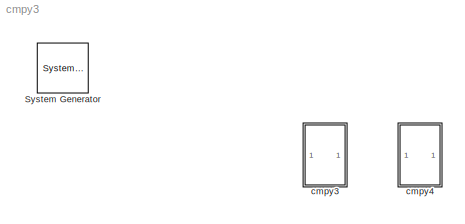
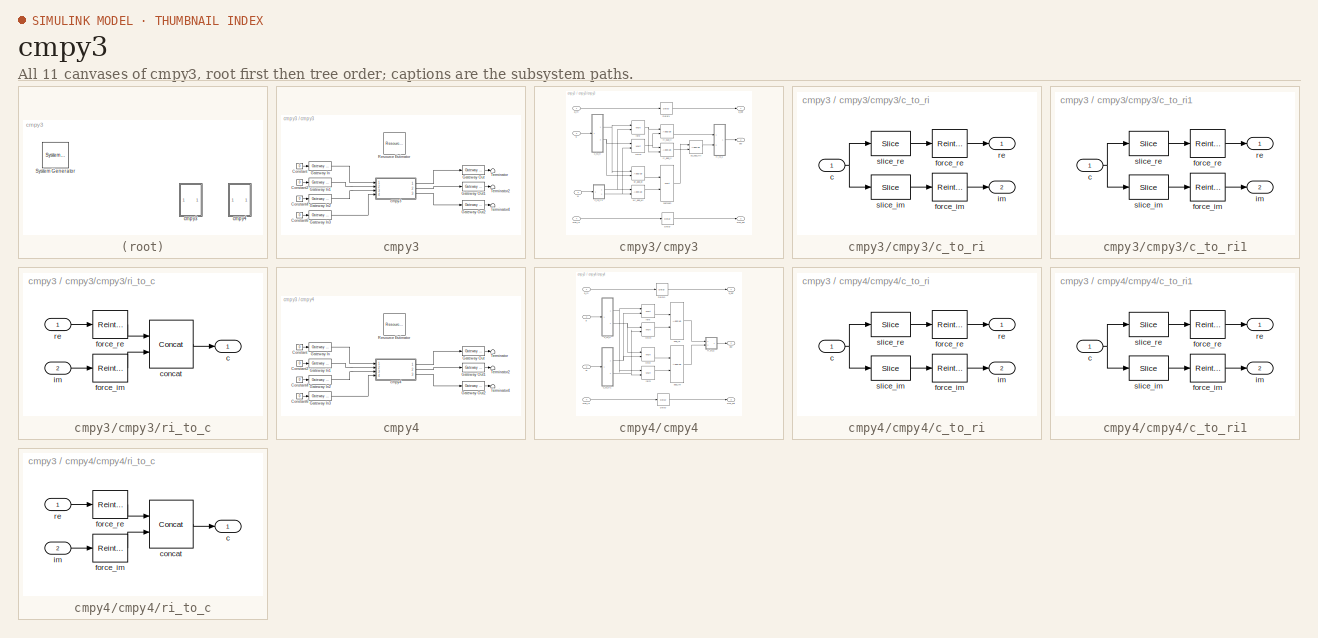
[diagram: thumbnail index - all 11 canvases of the model, root first then tree order]
MODEL cmpy3
KIND model
BLOCK [Reference]  System Generator  REF=xbsIndex_r3/ System Generator
  AttributesFormatString = System\\nGenerator
  Ports = []
  ShowPortLabels = on
  SourceBlock = xbsIndex_r3/ System Generator
  SourceType = Xilinx System Generator
  Tag = genX
  UserData = DataTag0
  UserDataPersistent = on
  core_generation = According to Block Masks
  dbl_ovrd = According to Block Masks
  deprecated_control = off
  directory = ./netlist
  eval_field = 0
  incr_netlist = off
  package = bg575
  part = xc2v1000
  run_coregen = off
  simulink_period = 1
  speed = -4
  synthesis_tool = XST
  sysclk_period = 100
  testbench = off
  trim_vbits = Everywhere in SubSystem
  xilinxfamily = Virtex2
BLOCK [SubSystem] cmpy3
  MinAlgLoopOccurrences = off
  Ports = []
  RTWSystemCode = Auto
  TreatAsAtomicUnit = off
BLOCK [Constant] cmpy3/Constant
  Value = 0
BLOCK [Constant] cmpy3/Constant2
  Value = 0
BLOCK [Constant] cmpy3/Constant4
  Value = 0
BLOCK [Constant] cmpy3/Constant6
  Value = 0
BLOCK [Reference] cmpy3/Gateway In  REF=xbsIndex_r3/Gateway In
  LOCs = {}
  Ports = [1, 1]
  SourceBlock = xbsIndex_r3/Gateway In
  SourceType = Xilinx Gateway In
  arith_type = Unsigned
  bin_pt = 0
  dbl_ovrd = off
  locs_specified = off
  n_bits = 34
  needs_fixed_name = off
  overflow = Wrap
  period = 1
  quantization = Truncate
  show_param = off
  timing_constraint = None
  xl_area = [0 0 0 0 34 0 0]
  xl_use_area = off
BLOCK [Reference] cmpy3/Gateway In1  REF=xbsIndex_r3/Gateway In
  LOCs = {}
  Ports = [1, 1]
  SourceBlock = xbsIndex_r3/Gateway In
  SourceType = Xilinx Gateway In
  arith_type = Unsigned
  bin_pt = 0
  dbl_ovrd = off
  locs_specified = off
  n_bits = 34
  needs_fixed_name = off
  overflow = Wrap
  period = 1
  quantization = Truncate
  show_param = off
  timing_constraint = None
  xl_area = [0 0 0 0 34 0 0]
  xl_use_area = off
BLOCK [Reference] cmpy3/Gateway In2  REF=xbsIndex_r3/Gateway In
  LOCs = {}
  Ports = [1, 1]
  SourceBlock = xbsIndex_r3/Gateway In
  SourceType = Xilinx Gateway In
  arith_type = Unsigned
  bin_pt = 0
  dbl_ovrd = off
  locs_specified = off
  n_bits = 18
  needs_fixed_name = off
  overflow = Wrap
  period = 1
  quantization = Truncate
  show_param = off
  timing_constraint = None
  xl_area = [0 0 0 0 18 0 0]
  xl_use_area = off
BLOCK [Reference] cmpy3/Gateway In3  REF=xbsIndex_r3/Gateway In
  LOCs = {}
  Ports = [1, 1]
  SourceBlock = xbsIndex_r3/Gateway In
  SourceType = Xilinx Gateway In
  arith_type = Boolean
  bin_pt = 6
  dbl_ovrd = off
  locs_specified = off
  n_bits = 8
  needs_fixed_name = off
  overflow = Wrap
  period = 1
  quantization = Truncate
  show_param = off
  timing_constraint = None
  xl_area = [0 0 0 0 1 0 0]
  xl_use_area = off
BLOCK [Reference] cmpy3/Gateway Out  REF=xbsIndex_r3/Gateway Out
  LOCs = {}
  Ports = [1, 1]
  SourceBlock = xbsIndex_r3/Gateway Out
  SourceType = Xilinx Gateway Out
  arith_type = Boolean
  bin_pt = 6
  hdl_port = on
  locs_specified = off
  nbits = 8
  needs_fixed_name = off
  output_type = Double
  overflow = Wrap
  quantization = Truncate
  show_param = off
  timing_constraint = None
  xl_area = [0 0 0 0 34 0 0]
  xl_use_area = off
BLOCK [Reference] cmpy3/Gateway Out1  REF=xbsIndex_r3/Gateway Out
  LOCs = {}
  Ports = [1, 1]
  SourceBlock = xbsIndex_r3/Gateway Out
  SourceType = Xilinx Gateway Out
  arith_type = Boolean
  bin_pt = 6
  hdl_port = on
  locs_specified = off
  nbits = 8
  needs_fixed_name = off
  output_type = Double
  overflow = Wrap
  quantization = Truncate
  show_param = off
  timing_constraint = None
  xl_area = [0 0 0 0 34 0 0]
  xl_use_area = off
BLOCK [Reference] cmpy3/Gateway Out2  REF=xbsIndex_r3/Gateway Out
  LOCs = {}
  Ports = [1, 1]
  SourceBlock = xbsIndex_r3/Gateway Out
  SourceType = Xilinx Gateway Out
  arith_type = Boolean
  bin_pt = 6
  hdl_port = on
  locs_specified = off
  nbits = 8
  needs_fixed_name = off
  output_type = Double
  overflow = Wrap
  quantization = Truncate
  show_param = off
  timing_constraint = None
  xl_area = [0 0 0 0 1 0 0]
  xl_use_area = off
BLOCK [Reference] cmpy3/Resource Estimator  REF=xbsIndex_r3/Resource Estimator
  AttributesFormatString = Resource Estimator\\n%<xl_estimator_area>\\n[SL FF BR LUT IO MUL TBUF]
  Ports = []
  ShowPortLabels = on
  SourceBlock = xbsIndex_r3/Resource Estimator
  SourceType = Xilinx Resource Estimator Block
  Tag = resEstTag
  mrp_directory = <path>
  simulink_period = 1
  xl_estimator_area = [216 323 0 329 156 3 0]
  xl_use_estimator_area = off
BLOCK [Terminator] cmpy3/Terminator
BLOCK [Terminator] cmpy3/Terminator2
BLOCK [Terminator] cmpy3/Terminator4
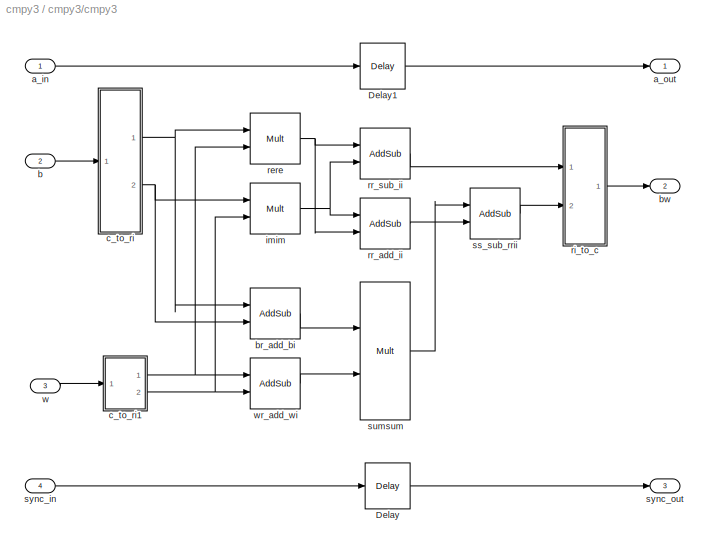
BLOCK [SubSystem] cmpy3/cmpy3
  AttributesFormatString = 8_7 * 9_7 ==> 8_7
  MaskCallbackString = |||||||||
  MaskDescription = This block multiplies two complex numbers using 4 real multipliers and 2 real adders.  Pass-through paths are provided for another complex number and a sync signal.  These pass through paths provide delay that matches the latency of the complex multiply operation.
  MaskEnableString = on,on,on,on,on,on,on,on,on,on
  MaskHelp = <pre>\nDescription::\n\nThis block multiplies two complex numbers using 4 real multipliers and 2 real adders.\nPass-through paths are provided for another complex number and a sync signal.\nThese paths provide delay that matches the latency of the complex multiply operation.\n\na_in is passed through to a_out.\nb and w complex inputs are multiplied and their product appears on the bw output.\nsync...<+1222ch>
  MaskIconFrame = on
  MaskIconOpaque = on
  MaskIconRotate = none
  MaskIconUnits = autoscale
  MaskInitialization = cmpy3_init(gcb, ...\n    n_bits_b,bin_pt_b, ...\n    n_bits_w,bin_pt_w, ...\n    n_bits_bw,bin_pt_bw, ...\n    quantization,overflow, ...\n    mult_latency,add_latency);
  MaskPromptString = Number of Bits B|Binary Point B|Number of Bits W|Binary Point W|Number of Bits BW|Binary Point BW|Quantization|Overflow|Multiplier Latency|Adder Latency
  MaskSelfModifiable = on
  MaskStyleString = edit,edit,edit,edit,edit,edit,popup(Truncate|Round  (unbiased: +/- Inf)),popup(Wrap|Saturate|Error),edit,edit
  MaskTabNameString = ,,,,,,,,,
  MaskToolTipString = on,on,on,on,on,on,on,on,on,on
  MaskTunableValueString = on,on,on,on,on,on,on,on,on,on
  MaskType = Complex Multiplier (4 real multipliers)
  MaskValueString = 8|7|9|7|8|7|Round  (unbiased: +/- Inf)|Saturate|3|1
  MaskVarAliasString = ,,,,,,,,,
  MaskVariables = n_bits_b=@1;bin_pt_b=@2;n_bits_w=@3;bin_pt_w=@4;n_bits_bw=@5;bin_pt_bw=@6;quantization=@7;overflow=@8;mult_latency=@9;add_latency=@10;
  MaskVisibilityString = on,on,on,on,on,on,on,on,on,on
  MinAlgLoopOccurrences = off
  Ports = [4, 3]
  RTWSystemCode = Auto
  TreatAsAtomicUnit = off
  UserData = DataTag1
  UserDataPersistent = on
BLOCK [Reference] cmpy3/cmpy3/Delay  REF=xbsIndex_r3/Delay
  Ports = [1, 1]
  SourceBlock = xbsIndex_r3/Delay
  SourceType = Xilinx Delay Block
  accept_only_valid = off
  dbl_ovrd = off
  en = off
  explicit_period = off
  init_zero = on
  latency = 5
  period = 1
  reg_retiming = off
  show_param = off
  xl_area = [1 1 0 1 0 0 0]
  xl_use_area = off
BLOCK [Reference] cmpy3/cmpy3/Delay1  REF=xbsIndex_r3/Delay
  Ports = [1, 1]
  SourceBlock = xbsIndex_r3/Delay
  SourceType = Xilinx Delay Block
  accept_only_valid = off
  dbl_ovrd = off
  en = off
  explicit_period = off
  init_zero = on
  latency = 5
  period = 1
  reg_retiming = off
  show_param = off
  xl_area = [17 34 0 34 0 0 0]
  xl_use_area = off
BLOCK [Inport] cmpy3/cmpy3/a_in
  IconDisplay = Port number
  LatchInput = off
  Port = 1
BLOCK [Outport] cmpy3/cmpy3/a_out
  BusOutputAsStruct = off
  IconDisplay = Port number
BLOCK [Inport] cmpy3/cmpy3/b
  IconDisplay = Port number
  LatchInput = off
  Port = 2
BLOCK [Reference] cmpy3/cmpy3/br_add_bi  REF=xbsIndex_r3/AddSub
  Ports = [2, 1]
  SourceBlock = xbsIndex_r3/AddSub
  SourceType = Xilinx Adder/Subtractor
  arith_type = Unsigned
  bin_pt = 2
  dbl_ovrd = off
  en = off
  explicit_period = off
  gen_core = off
  latency = 1
  mode = Addition
  n_bits = 8
  overflow = Wrap
  period = 1
  pipeline = on
  precision = Full
  quantization = Truncate
  show_param = on
  use_carryin = off
  use_carryout = off
  use_core = on
  use_rpm = on
  xl_area = [9 18 0 18 0 0 0]
  xl_use_area = off
BLOCK [Outport] cmpy3/cmpy3/bw
  BusOutputAsStruct = off
  IconDisplay = Port number
  Port = 2
BLOCK [SubSystem] cmpy3/cmpy3/c_to_ri
  AttributesFormatString = 8_7 r/i
  MaskCallbackString = |
  MaskDescription = Outputs real and imaginary components of a complex input.
  MaskEnableString = on,on
  MaskHelp = <pre>\nDescription::\n\nOutputs real and imaginary components of a complex input.\nUseful for simplifying interconnects.\nSee also: Real-Imag to Complex (ri_to_c)\n\nMask Parameters::\n\nBit Width (n_bits): Specifies the width of the real/imaginary components.\nAssumed equal for both components.\n\nBinary Point (bin_pt): Specifies the binary point location in the real/imaginary components.\nAssume...<+36ch>  <repeated x4 — deduplicated; at blocks: c_to_ri, c_to_ri1>
  MaskIconFrame = on
  MaskIconOpaque = on
  MaskIconRotate = none
  MaskIconUnits = autoscale
  MaskPromptString = Bit Width|Binary Point
  MaskSelfModifiable = on
  MaskStyleString = edit,edit
  MaskTabNameString = ,
  MaskToolTipString = on,on
  MaskTunableValueString = on,on
  MaskType = Complex to Real-Imag
  MaskValueString = 8|7
  MaskVarAliasString = ,
  MaskVariables = n_bits=@1;bin_pt=@2;
  MaskVisibilityString = on,on
  MinAlgLoopOccurrences = off
  Ports = [1, 2]
  RTWSystemCode = Auto
  TreatAsAtomicUnit = off
  UserData = DataTag2
  UserDataPersistent = on
BLOCK [Inport] cmpy3/cmpy3/c_to_ri/c
  IconDisplay = Port number
  LatchInput = off
  Port = 1
BLOCK [Reference] cmpy3/cmpy3/c_to_ri/force_im  REF=xbsIndex_r3/Reinterpret
  Ports = [1, 1]
  SourceBlock = xbsIndex_r3/Reinterpret
  SourceType = Xilinx Type Reinterpreting Block
  arith_type = Signed  (2's comp)
  bin_pt = 7
  force_arith_type = on
  force_bin_pt = on
  force_valid = on
BLOCK [Reference] cmpy3/cmpy3/c_to_ri/force_re  REF=xbsIndex_r3/Reinterpret
  Ports = [1, 1]
  SourceBlock = xbsIndex_r3/Reinterpret
  SourceType = Xilinx Type Reinterpreting Block
  arith_type = Signed  (2's comp)
  bin_pt = 7
  force_arith_type = on
  force_bin_pt = on
  force_valid = on
BLOCK [Outport] cmpy3/cmpy3/c_to_ri/im
  BusOutputAsStruct = off
  IconDisplay = Port number
  Port = 2
BLOCK [Outport] cmpy3/cmpy3/c_to_ri/re
  BusOutputAsStruct = off
  IconDisplay = Port number
BLOCK [Reference] cmpy3/cmpy3/c_to_ri/slice_im  REF=xbsIndex_r3/Slice
  Ports = [1, 1]
  SourceBlock = xbsIndex_r3/Slice
  SourceType = Xilinx Slice Block
  base0 = LSB of Input
  base1 = MSB of Input
  bit0 = 0
  bit1 = 0
  boolean_output = off
  dbl_ovrd = off
  explicit_period = off
  mode = Lower Bit Location + Width
  nbits = 8
  period = 1
BLOCK [Reference] cmpy3/cmpy3/c_to_ri/slice_re  REF=xbsIndex_r3/Slice
  Ports = [1, 1]
  SourceBlock = xbsIndex_r3/Slice
  SourceType = Xilinx Slice Block
  base0 = LSB of Input
  base1 = MSB of Input
  bit0 = 0
  bit1 = 0
  boolean_output = off
  dbl_ovrd = off
  explicit_period = off
  mode = Upper Bit Location + Width
  nbits = 8
  period = 1
BLOCK [SubSystem] cmpy3/cmpy3/c_to_ri1
  AttributesFormatString = 9_7 r/i
  MaskCallbackString = |
  MaskDescription = Outputs real and imaginary components of a complex input.
  MaskEnableString = on,on
  MaskIconFrame = on
  MaskIconOpaque = on
  MaskIconRotate = none
  MaskIconUnits = autoscale
  MaskInitialization = c_to_ri_init(gcb,n_bits,bin_pt);
  MaskPromptString = Bit Width|Binary Point
  MaskSelfModifiable = on
  MaskStyleString = edit,edit
  MaskTabNameString = ,
  MaskToolTipString = on,on
  MaskTunableValueString = on,on
  MaskType = Complex to Real-Imag
  MaskValueString = 9|7
  MaskVarAliasString = ,
  MaskVariables = n_bits=@1;bin_pt=@2;
  MaskVisibilityString = on,on
  MinAlgLoopOccurrences = off
  Ports = [1, 2]
  RTWSystemCode = Auto
  TreatAsAtomicUnit = off
  UserData = DataTag3
  UserDataPersistent = on
BLOCK [Inport] cmpy3/cmpy3/c_to_ri1/c
  IconDisplay = Port number
  LatchInput = off
  Port = 1
BLOCK [Reference] cmpy3/cmpy3/c_to_ri1/force_im  REF=xbsIndex_r3/Reinterpret
  Ports = [1, 1]
  SourceBlock = xbsIndex_r3/Reinterpret
  SourceType = Xilinx Type Reinterpreting Block
  arith_type = Signed  (2's comp)
  bin_pt = 7
  force_arith_type = on
  force_bin_pt = on
  force_valid = on
BLOCK [Reference] cmpy3/cmpy3/c_to_ri1/force_re  REF=xbsIndex_r3/Reinterpret
  Ports = [1, 1]
  SourceBlock = xbsIndex_r3/Reinterpret
  SourceType = Xilinx Type Reinterpreting Block
  arith_type = Signed  (2's comp)
  bin_pt = 7
  force_arith_type = on
  force_bin_pt = on
  force_valid = on
BLOCK [Outport] cmpy3/cmpy3/c_to_ri1/im
  BusOutputAsStruct = off
  IconDisplay = Port number
  Port = 2
BLOCK [Outport] cmpy3/cmpy3/c_to_ri1/re
  BusOutputAsStruct = off
  IconDisplay = Port number
BLOCK [Reference] cmpy3/cmpy3/c_to_ri1/slice_im  REF=xbsIndex_r3/Slice
  Ports = [1, 1]
  SourceBlock = xbsIndex_r3/Slice
  SourceType = Xilinx Slice Block
  base0 = LSB of Input
  base1 = MSB of Input
  bit0 = 0
  bit1 = 0
  boolean_output = off
  dbl_ovrd = off
  explicit_period = off
  mode = Lower Bit Location + Width
  nbits = 9
  period = 1
BLOCK [Reference] cmpy3/cmpy3/c_to_ri1/slice_re  REF=xbsIndex_r3/Slice
  Ports = [1, 1]
  SourceBlock = xbsIndex_r3/Slice
  SourceType = Xilinx Slice Block
  base0 = LSB of Input
  base1 = MSB of Input
  bit0 = 0
  bit1 = 0
  boolean_output = off
  dbl_ovrd = off
  explicit_period = off
  mode = Upper Bit Location + Width
  nbits = 9
  period = 1
BLOCK [Reference] cmpy3/cmpy3/imim  REF=xbsIndex_r3/Mult
  Ports = [2, 1]
  SourceBlock = xbsIndex_r3/Mult
  SourceType = Xilinx Multiplier
  arith_type = Signed  (2's comp)
  bin_pt = 2
  dbl_ovrd = off
  en = off
  explicit_period = off
  gen_core = off
  latency = 3
  mult_type = Parallel
  n_bits = 8
  overflow = Wrap
  oversample = 2
  period = 1
  pipeline = on
  placement_style = Rectangular Shape
  precision = Full
  quantization = Truncate
  show_param = on
  use_embedded = on
  use_rpm = on
  xl_area = [26 52 0 26 0 1 0]
  xl_use_area = off
BLOCK [Reference] cmpy3/cmpy3/rere  REF=xbsIndex_r3/Mult
  Ports = [2, 1]
  SourceBlock = xbsIndex_r3/Mult
  SourceType = Xilinx Multiplier
  arith_type = Signed  (2's comp)
  bin_pt = 2
  dbl_ovrd = off
  en = off
  explicit_period = off
  gen_core = off
  latency = 3
  mult_type = Parallel
  n_bits = 8
  overflow = Wrap
  oversample = 2
  period = 1
  pipeline = on
  placement_style = Rectangular Shape
  precision = Full
  quantization = Truncate
  show_param = on
  use_embedded = on
  use_rpm = on
  xl_area = [26 52 0 26 0 1 0]
  xl_use_area = off
BLOCK [SubSystem] cmpy3/cmpy3/ri_to_c
  MaskDescription = Concatenates real and imaginary inputs into a complex output.
  MaskHelp = <pre>\nDescription::\n\nConcatenates a real and imaginary input into a complex output.\nUseful for simplifying interconnects.\nSee also: Complex to Real-Imag (c_to_ri)\n\nMask Parameters::\n\n(N/A)\n</pre>
  MaskIconFrame = on
  MaskIconOpaque = on
  MaskIconRotate = none
  MaskIconUnits = autoscale
  MaskInitialization = ri_to_c_init(gcb);
  MaskSelfModifiable = on
  MaskType = Real-Imag to Complex
  MinAlgLoopOccurrences = off
  Ports = [2, 1]
  RTWSystemCode = Auto
  TreatAsAtomicUnit = off
  UserData = DataTag4
  UserDataPersistent = on
BLOCK [Outport] cmpy3/cmpy3/ri_to_c/c
  BusOutputAsStruct = off
  IconDisplay = Port number
BLOCK [Reference] cmpy3/cmpy3/ri_to_c/concat  REF=xbsIndex_r3/Concat
  Ports = [2, 1]
  SourceBlock = xbsIndex_r3/Concat
  SourceType = Xilinx Bus Concatenator
  dbl_ovrd = off
  explicit_period = off
  num_inputs = 2
  period = 1
BLOCK [Reference] cmpy3/cmpy3/ri_to_c/force_im  REF=xbsIndex_r3/Reinterpret
  Ports = [1, 1]
  SourceBlock = xbsIndex_r3/Reinterpret
  SourceType = Xilinx Type Reinterpreting Block
  arith_type = Unsigned
  bin_pt = 0
  force_arith_type = on
  force_bin_pt = on
  force_valid = on
BLOCK [Reference] cmpy3/cmpy3/ri_to_c/force_re  REF=xbsIndex_r3/Reinterpret
  Ports = [1, 1]
  SourceBlock = xbsIndex_r3/Reinterpret
  SourceType = Xilinx Type Reinterpreting Block
  arith_type = Unsigned
  bin_pt = 0
  force_arith_type = on
  force_bin_pt = on
  force_valid = on
BLOCK [Inport] cmpy3/cmpy3/ri_to_c/im
  IconDisplay = Port number
  LatchInput = off
  Port = 2
BLOCK [Inport] cmpy3/cmpy3/ri_to_c/re
  IconDisplay = Port number
  LatchInput = off
  Port = 1
BLOCK [Reference] cmpy3/cmpy3/rr_add_ii  REF=xbsIndex_r3/AddSub
  Ports = [2, 1]
  SourceBlock = xbsIndex_r3/AddSub
  SourceType = Xilinx Adder/Subtractor
  arith_type = Unsigned
  bin_pt = 2
  dbl_ovrd = off
  en = off
  explicit_period = off
  gen_core = off
  latency = 1
  mode = Addition
  n_bits = 8
  overflow = Wrap
  period = 1
  pipeline = on
  precision = Full
  quantization = Truncate
  show_param = on
  use_carryin = off
  use_carryout = off
  use_core = on
  use_rpm = on
  xl_area = [14 27 0 27 0 0 0]
  xl_use_area = off
BLOCK [Reference] cmpy3/cmpy3/rr_sub_ii  REF=xbsIndex_r3/AddSub
  Ports = [2, 1]
  SourceBlock = xbsIndex_r3/AddSub
  SourceType = Xilinx Adder/Subtractor
  arith_type = Unsigned
  bin_pt = 7
  dbl_ovrd = off
  en = off
  explicit_period = off
  gen_core = off
  latency = 2
  mode = Subtraction
  n_bits = 8
  overflow = Saturate
  period = 1
  pipeline = on
  precision = User Defined
  quantization = Round  (unbiased: +/- Inf)
  show_param = on
  use_carryin = off
  use_carryout = off
  use_core = on
  use_rpm = on
  xl_area = [44 44 0 69 0 0 0]
  xl_use_area = off
BLOCK [Reference] cmpy3/cmpy3/ss_sub_rrii  REF=xbsIndex_r3/AddSub
  Ports = [2, 1]
  SourceBlock = xbsIndex_r3/AddSub
  SourceType = Xilinx Adder/Subtractor
  arith_type = Signed  (2's comp)
  bin_pt = 7
  dbl_ovrd = off
  en = off
  explicit_period = off
  gen_core = off
  latency = 1
  mode = Subtraction
  n_bits = 8
  overflow = Saturate
  period = 1
  pipeline = on
  precision = User Defined
  quantization = Round  (unbiased: +/- Inf)
  show_param = on
  use_carryin = off
  use_carryout = off
  use_core = on
  use_rpm = on
  xl_area = [46 29 0 90 0 0 0]
  xl_use_area = off
BLOCK [Reference] cmpy3/cmpy3/sumsum  REF=xbsIndex_r3/Mult
  Ports = [2, 1]
  SourceBlock = xbsIndex_r3/Mult
  SourceType = Xilinx Multiplier
  arith_type = Signed  (2's comp)
  bin_pt = 2
  dbl_ovrd = off
  en = off
  explicit_period = off
  gen_core = off
  latency = 3
  mult_type = Parallel
  n_bits = 8
  overflow = Wrap
  oversample = 2
  period = 1
  pipeline = on
  placement_style = Rectangular Shape
  precision = Full
  quantization = Truncate
  show_param = on
  use_embedded = on
  use_rpm = on
  xl_area = [28 56 0 28 0 1 0]
  xl_use_area = off
BLOCK [Inport] cmpy3/cmpy3/sync_in
  IconDisplay = Port number
  LatchInput = off
  Port = 4
BLOCK [Outport] cmpy3/cmpy3/sync_out
  BusOutputAsStruct = off
  IconDisplay = Port number
  Port = 3
BLOCK [Inport] cmpy3/cmpy3/w
  IconDisplay = Port number
  LatchInput = off
  Port = 3
BLOCK [Reference] cmpy3/cmpy3/wr_add_wi  REF=xbsIndex_r3/AddSub
  Ports = [2, 1]
  SourceBlock = xbsIndex_r3/AddSub
  SourceType = Xilinx Adder/Subtractor
  arith_type = Unsigned
  bin_pt = 2
  dbl_ovrd = off
  en = off
  explicit_period = off
  gen_core = off
  latency = 1
  mode = Addition
  n_bits = 8
  overflow = Wrap
  period = 1
  pipeline = on
  precision = Full
  quantization = Truncate
  show_param = on
  use_carryin = off
  use_carryout = off
  use_core = on
  use_rpm = on
  xl_area = [5 10 0 10 0 0 0]
  xl_use_area = off
BLOCK [SubSystem] cmpy4
  MinAlgLoopOccurrences = off
  Ports = []
  RTWSystemCode = Auto
  TreatAsAtomicUnit = off
BLOCK [Constant] cmpy4/Constant
  Value = 0
BLOCK [Constant] cmpy4/Constant2
  Value = 0
BLOCK [Constant] cmpy4/Constant4
  Value = 0
BLOCK [Constant] cmpy4/Constant6
  Value = 0
BLOCK [Reference] cmpy4/Gateway In  REF=xbsIndex_r3/Gateway In
  LOCs = {}
  Ports = [1, 1]
  SourceBlock = xbsIndex_r3/Gateway In
  SourceType = Xilinx Gateway In
  arith_type = Unsigned
  bin_pt = 0
  dbl_ovrd = off
  locs_specified = off
  n_bits = 34
  needs_fixed_name = off
  overflow = Wrap
  period = 1
  quantization = Truncate
  show_param = off
  timing_constraint = None
  xl_area = [0 0 0 0 34 0 0]
  xl_use_area = off
BLOCK [Reference] cmpy4/Gateway In1  REF=xbsIndex_r3/Gateway In
  LOCs = {}
  Ports = [1, 1]
  SourceBlock = xbsIndex_r3/Gateway In
  SourceType = Xilinx Gateway In
  arith_type = Unsigned
  bin_pt = 0
  dbl_ovrd = off
  locs_specified = off
  n_bits = 34
  needs_fixed_name = off
  overflow = Wrap
  period = 1
  quantization = Truncate
  show_param = off
  timing_constraint = None
  xl_area = [0 0 0 0 34 0 0]
  xl_use_area = off
BLOCK [Reference] cmpy4/Gateway In2  REF=xbsIndex_r3/Gateway In
  LOCs = {}
  Ports = [1, 1]
  SourceBlock = xbsIndex_r3/Gateway In
  SourceType = Xilinx Gateway In
  arith_type = Unsigned
  bin_pt = 0
  dbl_ovrd = off
  locs_specified = off
  n_bits = 18
  needs_fixed_name = off
  overflow = Wrap
  period = 1
  quantization = Truncate
  show_param = off
  timing_constraint = None
  xl_area = [0 0 0 0 18 0 0]
  xl_use_area = off
BLOCK [Reference] cmpy4/Gateway In3  REF=xbsIndex_r3/Gateway In
  LOCs = {}
  Ports = [1, 1]
  SourceBlock = xbsIndex_r3/Gateway In
  SourceType = Xilinx Gateway In
  arith_type = Boolean
  bin_pt = 6
  dbl_ovrd = off
  locs_specified = off
  n_bits = 8
  needs_fixed_name = off
  overflow = Wrap
  period = 1
  quantization = Truncate
  show_param = off
  timing_constraint = None
  xl_area = [0 0 0 0 1 0 0]
  xl_use_area = off
BLOCK [Reference] cmpy4/Gateway Out  REF=xbsIndex_r3/Gateway Out
  LOCs = {}
  Ports = [1, 1]
  SourceBlock = xbsIndex_r3/Gateway Out
  SourceType = Xilinx Gateway Out
  arith_type = Boolean
  bin_pt = 6
  hdl_port = on
  locs_specified = off
  nbits = 8
  needs_fixed_name = off
  output_type = Double
  overflow = Wrap
  quantization = Truncate
  show_param = off
  timing_constraint = None
  xl_area = [0 0 0 0 34 0 0]
  xl_use_area = off
BLOCK [Reference] cmpy4/Gateway Out1  REF=xbsIndex_r3/Gateway Out
  LOCs = {}
  Ports = [1, 1]
  SourceBlock = xbsIndex_r3/Gateway Out
  SourceType = Xilinx Gateway Out
  arith_type = Boolean
  bin_pt = 6
  hdl_port = on
  locs_specified = off
  nbits = 8
  needs_fixed_name = off
  output_type = Double
  overflow = Wrap
  quantization = Truncate
  show_param = off
  timing_constraint = None
  xl_area = [0 0 0 0 34 0 0]
  xl_use_area = off
BLOCK [Reference] cmpy4/Gateway Out2  REF=xbsIndex_r3/Gateway Out
  LOCs = {}
  Ports = [1, 1]
  SourceBlock = xbsIndex_r3/Gateway Out
  SourceType = Xilinx Gateway Out
  arith_type = Boolean
  bin_pt = 6
  hdl_port = on
  locs_specified = off
  nbits = 8
  needs_fixed_name = off
  output_type = Double
  overflow = Wrap
  quantization = Truncate
  show_param = off
  timing_constraint = None
  xl_area = [0 0 0 0 1 0 0]
  xl_use_area = off
BLOCK [Reference] cmpy4/Resource Estimator  REF=xbsIndex_r3/Resource Estimator
  AttributesFormatString = Resource Estimator\\n%<xl_estimator_area>\\n[SL FF BR LUT IO MUL TBUF]
  Ports = []
  ShowPortLabels = on
  SourceBlock = xbsIndex_r3/Resource Estimator
  SourceType = Xilinx Resource Estimator Block
  Tag = resEstTag
  mrp_directory = <path>
  simulink_period = 1
  xl_estimator_area = [210 297 0 311 156 4 0]
  xl_use_estimator_area = off
BLOCK [Terminator] cmpy4/Terminator
BLOCK [Terminator] cmpy4/Terminator2
BLOCK [Terminator] cmpy4/Terminator4
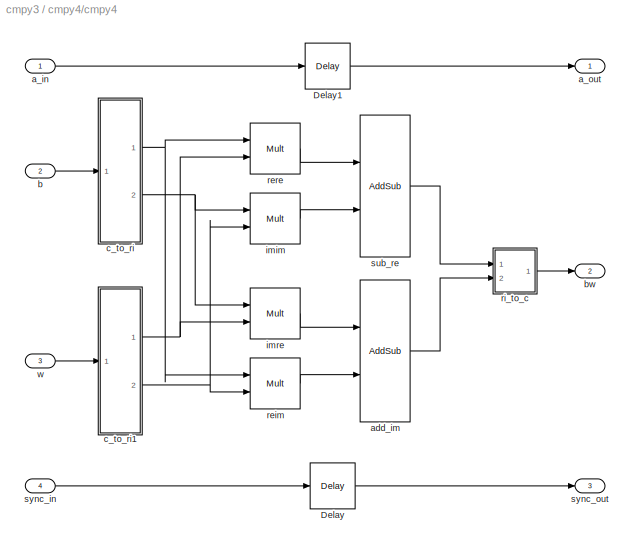
BLOCK [SubSystem] cmpy4/cmpy4
  AttributesFormatString = 17_7 * 9_7 ==> 17_7
  MaskCallbackString = |||||||||
  MaskDescription = This block multiplies two complex numbers using 4 real multipliers and 2 real adders.  Pass-through paths are provided for another complex number and a sync signal.  These pass through paths provide delay that matches the latency of the complex multiply operation.
  MaskEnableString = on,on,on,on,on,on,on,on,on,on
  MaskHelp = <pre>\nDescription::\n\nThis block multiplies two complex numbers using 4 real multipliers and 2 real adders.\nPass-through paths are provided for another complex number and a sync signal.\nThese paths provide delay that matches the latency of the complex multiply operation.\n\na_in is passed through to a_out.\nb and w complex inputs are multiplied and their product appears on the bw output.\nsync...<+1222ch>
  MaskIconFrame = on
  MaskIconOpaque = on
  MaskIconRotate = none
  MaskIconUnits = autoscale
  MaskInitialization = cmpy4_init(gcb, ...\n    n_bits_b,bin_pt_b, ...\n    n_bits_w,bin_pt_w, ...\n    n_bits_bw,bin_pt_bw, ...\n    quantization,overflow, ...\n    mult_latency,add_latency);
  MaskPromptString = Number of Bits B|Binary Point B|Number of Bits W|Binary Point W|Number of Bits BW|Binary Point BW|Quantization|Overflow|Multiplier Latency|Adder Latency
  MaskSelfModifiable = on
  MaskStyleString = edit,edit,edit,edit,edit,edit,popup(Truncate|Round  (unbiased: +/- Inf)),popup(Wrap|Saturate|Error),edit,edit
  MaskTabNameString = ,,,,,,,,,
  MaskToolTipString = on,on,on,on,on,on,on,on,on,on
  MaskTunableValueString = on,on,on,on,on,on,on,on,on,on
  MaskType = Complex Multiplier (4 real multipliers)
  MaskValueString = 17|7|9|7|17|7|Round  (unbiased: +/- Inf)|Saturate|3|1
  MaskVarAliasString = ,,,,,,,,,
  MaskVariables = n_bits_b=@1;bin_pt_b=@2;n_bits_w=@3;bin_pt_w=@4;n_bits_bw=@5;bin_pt_bw=@6;quantization=@7;overflow=@8;mult_latency=@9;add_latency=@10;
  MaskVisibilityString = on,on,on,on,on,on,on,on,on,on
  MinAlgLoopOccurrences = off
  Ports = [4, 3]
  RTWSystemCode = Auto
  TreatAsAtomicUnit = off
  UserData = DataTag5
  UserDataPersistent = on
BLOCK [Reference] cmpy4/cmpy4/Delay  REF=xbsIndex_r3/Delay
  Ports = [1, 1]
  SourceBlock = xbsIndex_r3/Delay
  SourceType = Xilinx Delay Block
  accept_only_valid = off
  dbl_ovrd = off
  en = off
  explicit_period = off
  init_zero = on
  latency = 4
  period = 1
  reg_retiming = off
  show_param = off
  xl_area = [1 1 0 1 0 0 0]
  xl_use_area = off
BLOCK [Reference] cmpy4/cmpy4/Delay1  REF=xbsIndex_r3/Delay
  Ports = [1, 1]
  SourceBlock = xbsIndex_r3/Delay
  SourceType = Xilinx Delay Block
  accept_only_valid = off
  dbl_ovrd = off
  en = off
  explicit_period = off
  init_zero = on
  latency = 4
  period = 1
  reg_retiming = off
  show_param = off
  xl_area = [17 34 0 34 0 0 0]
  xl_use_area = off
BLOCK [Inport] cmpy4/cmpy4/a_in
  IconDisplay = Port number
  LatchInput = off
  Port = 1
BLOCK [Outport] cmpy4/cmpy4/a_out
  BusOutputAsStruct = off
  IconDisplay = Port number
BLOCK [Reference] cmpy4/cmpy4/add_im  REF=xbsIndex_r3/AddSub
  Ports = [2, 1]
  SourceBlock = xbsIndex_r3/AddSub
  SourceType = Xilinx Adder/Subtractor
  arith_type = Signed  (2's comp)
  bin_pt = 7
  dbl_ovrd = off
  en = off
  explicit_period = off
  gen_core = off
  latency = 1
  mode = Addition
  n_bits = 17
  overflow = Saturate
  period = 1
  pipeline = on
  precision = User Defined
  quantization = Round  (unbiased: +/- Inf)
  show_param = on
  use_carryin = off
  use_carryout = off
  use_core = on
  use_rpm = on
  xl_area = [44 27 0 86 0 0 0]
  xl_use_area = off
BLOCK [Inport] cmpy4/cmpy4/b
  IconDisplay = Port number
  LatchInput = off
  Port = 2
BLOCK [Outport] cmpy4/cmpy4/bw
  BusOutputAsStruct = off
  IconDisplay = Port number
  Port = 2
BLOCK [SubSystem] cmpy4/cmpy4/c_to_ri
  AttributesFormatString = 17_7 r/i
  MaskCallbackString = |
  MaskDescription = Outputs real and imaginary components of a complex input.
  MaskEnableString = on,on
  MaskIconFrame = on
  MaskIconOpaque = on
  MaskIconRotate = none
  MaskIconUnits = autoscale
  MaskPromptString = Bit Width|Binary Point
  MaskSelfModifiable = on
  MaskStyleString = edit,edit
  MaskTabNameString = ,
  MaskToolTipString = on,on
  MaskTunableValueString = on,on
  MaskType = Complex to Real-Imag
  MaskValueString = 17|7
  MaskVarAliasString = ,
  MaskVariables = n_bits=@1;bin_pt=@2;
  MaskVisibilityString = on,on
  MinAlgLoopOccurrences = off
  Ports = [1, 2]
  RTWSystemCode = Auto
  TreatAsAtomicUnit = off
  UserData = DataTag6
  UserDataPersistent = on
BLOCK [Inport] cmpy4/cmpy4/c_to_ri/c
  IconDisplay = Port number
  LatchInput = off
  Port = 1
BLOCK [Reference] cmpy4/cmpy4/c_to_ri/force_im  REF=xbsIndex_r3/Reinterpret
  Ports = [1, 1]
  SourceBlock = xbsIndex_r3/Reinterpret
  SourceType = Xilinx Type Reinterpreting Block
  arith_type = Signed  (2's comp)
  bin_pt = 7
  force_arith_type = on
  force_bin_pt = on
  force_valid = on
BLOCK [Reference] cmpy4/cmpy4/c_to_ri/force_re  REF=xbsIndex_r3/Reinterpret
  Ports = [1, 1]
  SourceBlock = xbsIndex_r3/Reinterpret
  SourceType = Xilinx Type Reinterpreting Block
  arith_type = Signed  (2's comp)
  bin_pt = 7
  force_arith_type = on
  force_bin_pt = on
  force_valid = on
BLOCK [Outport] cmpy4/cmpy4/c_to_ri/im
  BusOutputAsStruct = off
  IconDisplay = Port number
  Port = 2
BLOCK [Outport] cmpy4/cmpy4/c_to_ri/re
  BusOutputAsStruct = off
  IconDisplay = Port number
BLOCK [Reference] cmpy4/cmpy4/c_to_ri/slice_im  REF=xbsIndex_r3/Slice
  Ports = [1, 1]
  SourceBlock = xbsIndex_r3/Slice
  SourceType = Xilinx Slice Block
  base0 = LSB of Input
  base1 = MSB of Input
  bit0 = 0
  bit1 = 0
  boolean_output = off
  dbl_ovrd = off
  explicit_period = off
  mode = Lower Bit Location + Width
  nbits = 17
  period = 1
BLOCK [Reference] cmpy4/cmpy4/c_to_ri/slice_re  REF=xbsIndex_r3/Slice
  Ports = [1, 1]
  SourceBlock = xbsIndex_r3/Slice
  SourceType = Xilinx Slice Block
  base0 = LSB of Input
  base1 = MSB of Input
  bit0 = 0
  bit1 = 0
  boolean_output = off
  dbl_ovrd = off
  explicit_period = off
  mode = Upper Bit Location + Width
  nbits = 17
  period = 1
BLOCK [SubSystem] cmpy4/cmpy4/c_to_ri1
  AttributesFormatString = 9_7 r/i
  MaskCallbackString = |
  MaskDescription = Outputs real and imaginary components of a complex input.
  MaskEnableString = on,on
  MaskIconFrame = on
  MaskIconOpaque = on
  MaskIconRotate = none
  MaskIconUnits = autoscale
  MaskPromptString = Bit Width|Binary Point
  MaskSelfModifiable = on
  MaskStyleString = edit,edit
  MaskTabNameString = ,
  MaskToolTipString = on,on
  MaskTunableValueString = on,on
  MaskType = Complex to Real-Imag
  MaskValueString = 9|7
  MaskVarAliasString = ,
  MaskVariables = n_bits=@1;bin_pt=@2;
  MaskVisibilityString = on,on
  MinAlgLoopOccurrences = off
  Ports = [1, 2]
  RTWSystemCode = Auto
  TreatAsAtomicUnit = off
  UserData = DataTag7
  UserDataPersistent = on
BLOCK [Inport] cmpy4/cmpy4/c_to_ri1/c
  IconDisplay = Port number
  LatchInput = off
  Port = 1
BLOCK [Reference] cmpy4/cmpy4/c_to_ri1/force_im  REF=xbsIndex_r3/Reinterpret
  Ports = [1, 1]
  SourceBlock = xbsIndex_r3/Reinterpret
  SourceType = Xilinx Type Reinterpreting Block
  arith_type = Signed  (2's comp)
  bin_pt = 7
  force_arith_type = on
  force_bin_pt = on
  force_valid = on
BLOCK [Reference] cmpy4/cmpy4/c_to_ri1/force_re  REF=xbsIndex_r3/Reinterpret
  Ports = [1, 1]
  SourceBlock = xbsIndex_r3/Reinterpret
  SourceType = Xilinx Type Reinterpreting Block
  arith_type = Signed  (2's comp)
  bin_pt = 7
  force_arith_type = on
  force_bin_pt = on
  force_valid = on
BLOCK [Outport] cmpy4/cmpy4/c_to_ri1/im
  BusOutputAsStruct = off
  IconDisplay = Port number
  Port = 2
BLOCK [Outport] cmpy4/cmpy4/c_to_ri1/re
  BusOutputAsStruct = off
  IconDisplay = Port number
BLOCK [Reference] cmpy4/cmpy4/c_to_ri1/slice_im  REF=xbsIndex_r3/Slice
  Ports = [1, 1]
  SourceBlock = xbsIndex_r3/Slice
  SourceType = Xilinx Slice Block
  base0 = LSB of Input
  base1 = MSB of Input
  bit0 = 0
  bit1 = 0
  boolean_output = off
  dbl_ovrd = off
  explicit_period = off
  mode = Lower Bit Location + Width
  nbits = 9
  period = 1
BLOCK [Reference] cmpy4/cmpy4/c_to_ri1/slice_re  REF=xbsIndex_r3/Slice
  Ports = [1, 1]
  SourceBlock = xbsIndex_r3/Slice
  SourceType = Xilinx Slice Block
  base0 = LSB of Input
  base1 = MSB of Input
  bit0 = 0
  bit1 = 0
  boolean_output = off
  dbl_ovrd = off
  explicit_period = off
  mode = Upper Bit Location + Width
  nbits = 9
  period = 1
BLOCK [Reference] cmpy4/cmpy4/imim  REF=xbsIndex_r3/Mult
  Ports = [2, 1]
  SourceBlock = xbsIndex_r3/Mult
  SourceType = Xilinx Multiplier
  arith_type = Signed  (2's comp)
  bin_pt = 2
  dbl_ovrd = off
  en = off
  explicit_period = off
  gen_core = off
  latency = 3
  mult_type = Parallel
  n_bits = 8
  overflow = Wrap
  oversample = 2
  period = 1
  pipeline = on
  placement_style = Rectangular Shape
  precision = Full
  quantization = Truncate
  show_param = on
  use_embedded = on
  use_rpm = on
  xl_area = [26 52 0 26 0 1 0]
  xl_use_area = off
BLOCK [Reference] cmpy4/cmpy4/imre  REF=xbsIndex_r3/Mult
  Ports = [2, 1]
  SourceBlock = xbsIndex_r3/Mult
  SourceType = Xilinx Multiplier
  arith_type = Signed  (2's comp)
  bin_pt = 2
  dbl_ovrd = off
  en = off
  explicit_period = off
  gen_core = off
  latency = 3
  mult_type = Parallel
  n_bits = 8
  overflow = Wrap
  oversample = 2
  period = 1
  pipeline = on
  placement_style = Rectangular Shape
  precision = Full
  quantization = Truncate
  show_param = on
  use_embedded = on
  use_rpm = on
  xl_area = [26 52 0 26 0 1 0]
  xl_use_area = off
BLOCK [Reference] cmpy4/cmpy4/reim  REF=xbsIndex_r3/Mult
  Ports = [2, 1]
  SourceBlock = xbsIndex_r3/Mult
  SourceType = Xilinx Multiplier
  arith_type = Signed  (2's comp)
  bin_pt = 2
  dbl_ovrd = off
  en = off
  explicit_period = off
  gen_core = off
  latency = 3
  mult_type = Parallel
  n_bits = 8
  overflow = Wrap
  oversample = 2
  period = 1
  pipeline = on
  placement_style = Rectangular Shape
  precision = Full
  quantization = Truncate
  show_param = on
  use_embedded = on
  use_rpm = on
  xl_area = [26 52 0 26 0 1 0]
  xl_use_area = off
BLOCK [Reference] cmpy4/cmpy4/rere  REF=xbsIndex_r3/Mult
  Ports = [2, 1]
  SourceBlock = xbsIndex_r3/Mult
  SourceType = Xilinx Multiplier
  arith_type = Signed  (2's comp)
  bin_pt = 2
  dbl_ovrd = off
  en = off
  explicit_period = off
  gen_core = off
  latency = 3
  mult_type = Parallel
  n_bits = 8
  overflow = Wrap
  oversample = 2
  period = 1
  pipeline = on
  placement_style = Rectangular Shape
  precision = Full
  quantization = Truncate
  show_param = on
  use_embedded = on
  use_rpm = on
  xl_area = [26 52 0 26 0 1 0]
  xl_use_area = off
BLOCK [SubSystem] cmpy4/cmpy4/ri_to_c
  MaskDescription = Concatenates real and imaginary inputs into a complex output.
  MaskHelp = <pre>\nDescription::\n\nConcatenates a real and imaginary input into a complex output.\nUseful for simplifying interconnects.\nSee also: Complex to Real-Imag (c_to_ri)\n\nMask Parameters::\n\n(N/A)\n</pre>
  MaskIconFrame = on
  MaskIconOpaque = on
  MaskIconRotate = none
  MaskIconUnits = autoscale
  MaskInitialization = ri_to_c_init(gcb);
  MaskSelfModifiable = on
  MaskType = Real-Imag to Complex
  MinAlgLoopOccurrences = off
  Ports = [2, 1]
  RTWSystemCode = Auto
  TreatAsAtomicUnit = off
  UserData = DataTag8
  UserDataPersistent = on
BLOCK [Outport] cmpy4/cmpy4/ri_to_c/c
  BusOutputAsStruct = off
  IconDisplay = Port number
BLOCK [Reference] cmpy4/cmpy4/ri_to_c/concat  REF=xbsIndex_r3/Concat
  Ports = [2, 1]
  SourceBlock = xbsIndex_r3/Concat
  SourceType = Xilinx Bus Concatenator
  dbl_ovrd = off
  explicit_period = off
  num_inputs = 2
  period = 1
BLOCK [Reference] cmpy4/cmpy4/ri_to_c/force_im  REF=xbsIndex_r3/Reinterpret
  Ports = [1, 1]
  SourceBlock = xbsIndex_r3/Reinterpret
  SourceType = Xilinx Type Reinterpreting Block
  arith_type = Unsigned
  bin_pt = 0
  force_arith_type = on
  force_bin_pt = on
  force_valid = on
BLOCK [Reference] cmpy4/cmpy4/ri_to_c/force_re  REF=xbsIndex_r3/Reinterpret
  Ports = [1, 1]
  SourceBlock = xbsIndex_r3/Reinterpret
  SourceType = Xilinx Type Reinterpreting Block
  arith_type = Unsigned
  bin_pt = 0
  force_arith_type = on
  force_bin_pt = on
  force_valid = on
BLOCK [Inport] cmpy4/cmpy4/ri_to_c/im
  IconDisplay = Port number
  LatchInput = off
  Port = 2
BLOCK [Inport] cmpy4/cmpy4/ri_to_c/re
  IconDisplay = Port number
  LatchInput = off
  Port = 1
BLOCK [Reference] cmpy4/cmpy4/sub_re  REF=xbsIndex_r3/AddSub
  Ports = [2, 1]
  SourceBlock = xbsIndex_r3/AddSub
  SourceType = Xilinx Adder/Subtractor
  arith_type = Signed  (2's comp)
  bin_pt = 7
  dbl_ovrd = off
  en = off
  explicit_period = off
  gen_core = off
  latency = 1
  mode = Subtraction
  n_bits = 17
  overflow = Saturate
  period = 1
  pipeline = on
  precision = User Defined
  quantization = Round  (unbiased: +/- Inf)
  show_param = on
  use_carryin = off
  use_carryout = off
  use_core = on
  use_rpm = on
  xl_area = [44 27 0 86 0 0 0]
  xl_use_area = off
BLOCK [Inport] cmpy4/cmpy4/sync_in
  IconDisplay = Port number
  LatchInput = off
  Port = 4
BLOCK [Outport] cmpy4/cmpy4/sync_out
  BusOutputAsStruct = off
  IconDisplay = Port number
  Port = 3
BLOCK [Inport] cmpy4/cmpy4/w
  IconDisplay = Port number
  LatchInput = off
  Port = 3
LINE cmpy3/Constant2:1 -> cmpy3/Gateway In1:1
LINE cmpy3/Constant4:1 -> cmpy3/Gateway In2:1
LINE cmpy3/Constant6:1 -> cmpy3/Gateway In3:1
LINE cmpy3/Constant:1 -> cmpy3/Gateway In:1
LINE cmpy3/Gateway In1:1 -> cmpy3/cmpy3:2
LINE cmpy3/Gateway In2:1 -> cmpy3/cmpy3:3
LINE cmpy3/Gateway In3:1 -> cmpy3/cmpy3:4
LINE cmpy3/Gateway In:1 -> cmpy3/cmpy3:1
LINE cmpy3/Gateway Out1:1 -> cmpy3/Terminator2:1
LINE cmpy3/Gateway Out2:1 -> cmpy3/Terminator4:1
LINE cmpy3/Gateway Out:1 -> cmpy3/Terminator:1
LINE cmpy3/cmpy3/Delay1:1 -> cmpy3/cmpy3/a_out:1
LINE cmpy3/cmpy3/Delay:1 -> cmpy3/cmpy3/sync_out:1
LINE cmpy3/cmpy3/a_in:1 -> cmpy3/cmpy3/Delay1:1
LINE cmpy3/cmpy3/b:1 -> cmpy3/cmpy3/c_to_ri:1
LINE cmpy3/cmpy3/br_add_bi:1 -> cmpy3/cmpy3/sumsum:1
NET cmpy3/cmpy3/c_to_ri/c:1 -> cmpy3/cmpy3/c_to_ri/slice_im:1, cmpy3/cmpy3/c_to_ri/slice_re:1
LINE cmpy3/cmpy3/c_to_ri/force_im:1 -> cmpy3/cmpy3/c_to_ri/im:1
LINE cmpy3/cmpy3/c_to_ri/force_re:1 -> cmpy3/cmpy3/c_to_ri/re:1
LINE cmpy3/cmpy3/c_to_ri/slice_im:1 -> cmpy3/cmpy3/c_to_ri/force_im:1
LINE cmpy3/cmpy3/c_to_ri/slice_re:1 -> cmpy3/cmpy3/c_to_ri/force_re:1
NET cmpy3/cmpy3/c_to_ri1/c:1 -> cmpy3/cmpy3/c_to_ri1/slice_im:1, cmpy3/cmpy3/c_to_ri1/slice_re:1
LINE cmpy3/cmpy3/c_to_ri1/force_im:1 -> cmpy3/cmpy3/c_to_ri1/im:1
LINE cmpy3/cmpy3/c_to_ri1/force_re:1 -> cmpy3/cmpy3/c_to_ri1/re:1
LINE cmpy3/cmpy3/c_to_ri1/slice_im:1 -> cmpy3/cmpy3/c_to_ri1/force_im:1
LINE cmpy3/cmpy3/c_to_ri1/slice_re:1 -> cmpy3/cmpy3/c_to_ri1/force_re:1
NET cmpy3/cmpy3/c_to_ri1:1 -> cmpy3/cmpy3/rere:2, cmpy3/cmpy3/wr_add_wi:1
NET cmpy3/cmpy3/c_to_ri1:2 -> cmpy3/cmpy3/imim:2, cmpy3/cmpy3/wr_add_wi:2
NET cmpy3/cmpy3/c_to_ri:1 -> cmpy3/cmpy3/br_add_bi:1, cmpy3/cmpy3/rere:1
NET cmpy3/cmpy3/c_to_ri:2 -> cmpy3/cmpy3/br_add_bi:2, cmpy3/cmpy3/imim:1
NET cmpy3/cmpy3/imim:1 -> cmpy3/cmpy3/rr_add_ii:1, cmpy3/cmpy3/rr_sub_ii:2
NET cmpy3/cmpy3/rere:1 -> cmpy3/cmpy3/rr_add_ii:2, cmpy3/cmpy3/rr_sub_ii:1
LINE cmpy3/cmpy3/ri_to_c/concat:1 -> cmpy3/cmpy3/ri_to_c/c:1
LINE cmpy3/cmpy3/ri_to_c/force_im:1 -> cmpy3/cmpy3/ri_to_c/concat:2
LINE cmpy3/cmpy3/ri_to_c/force_re:1 -> cmpy3/cmpy3/ri_to_c/concat:1
LINE cmpy3/cmpy3/ri_to_c/im:1 -> cmpy3/cmpy3/ri_to_c/force_im:1
LINE cmpy3/cmpy3/ri_to_c/re:1 -> cmpy3/cmpy3/ri_to_c/force_re:1
LINE cmpy3/cmpy3/ri_to_c:1 -> cmpy3/cmpy3/bw:1
LINE cmpy3/cmpy3/rr_add_ii:1 -> cmpy3/cmpy3/ss_sub_rrii:2
LINE cmpy3/cmpy3/rr_sub_ii:1 -> cmpy3/cmpy3/ri_to_c:1
LINE cmpy3/cmpy3/ss_sub_rrii:1 -> cmpy3/cmpy3/ri_to_c:2
LINE cmpy3/cmpy3/sumsum:1 -> cmpy3/cmpy3/ss_sub_rrii:1
LINE cmpy3/cmpy3/sync_in:1 -> cmpy3/cmpy3/Delay:1
LINE cmpy3/cmpy3/w:1 -> cmpy3/cmpy3/c_to_ri1:1
LINE cmpy3/cmpy3/wr_add_wi:1 -> cmpy3/cmpy3/sumsum:2
LINE cmpy3/cmpy3:1 -> cmpy3/Gateway Out:1
LINE cmpy3/cmpy3:2 -> cmpy3/Gateway Out1:1
LINE cmpy3/cmpy3:3 -> cmpy3/Gateway Out2:1
LINE cmpy4/Constant2:1 -> cmpy4/Gateway In1:1
LINE cmpy4/Constant4:1 -> cmpy4/Gateway In2:1
LINE cmpy4/Constant6:1 -> cmpy4/Gateway In3:1
LINE cmpy4/Constant:1 -> cmpy4/Gateway In:1
LINE cmpy4/Gateway In1:1 -> cmpy4/cmpy4:2
LINE cmpy4/Gateway In2:1 -> cmpy4/cmpy4:3
LINE cmpy4/Gateway In3:1 -> cmpy4/cmpy4:4
LINE cmpy4/Gateway In:1 -> cmpy4/cmpy4:1
LINE cmpy4/Gateway Out1:1 -> cmpy4/Terminator2:1
LINE cmpy4/Gateway Out2:1 -> cmpy4/Terminator4:1
LINE cmpy4/Gateway Out:1 -> cmpy4/Terminator:1
LINE cmpy4/cmpy4/Delay1:1 -> cmpy4/cmpy4/a_out:1
LINE cmpy4/cmpy4/Delay:1 -> cmpy4/cmpy4/sync_out:1
LINE cmpy4/cmpy4/a_in:1 -> cmpy4/cmpy4/Delay1:1
LINE cmpy4/cmpy4/add_im:1 -> cmpy4/cmpy4/ri_to_c:2
LINE cmpy4/cmpy4/b:1 -> cmpy4/cmpy4/c_to_ri:1
NET cmpy4/cmpy4/c_to_ri/c:1 -> cmpy4/cmpy4/c_to_ri/slice_im:1, cmpy4/cmpy4/c_to_ri/slice_re:1
LINE cmpy4/cmpy4/c_to_ri/force_im:1 -> cmpy4/cmpy4/c_to_ri/im:1
LINE cmpy4/cmpy4/c_to_ri/force_re:1 -> cmpy4/cmpy4/c_to_ri/re:1
LINE cmpy4/cmpy4/c_to_ri/slice_im:1 -> cmpy4/cmpy4/c_to_ri/force_im:1
LINE cmpy4/cmpy4/c_to_ri/slice_re:1 -> cmpy4/cmpy4/c_to_ri/force_re:1
NET cmpy4/cmpy4/c_to_ri1/c:1 -> cmpy4/cmpy4/c_to_ri1/slice_im:1, cmpy4/cmpy4/c_to_ri1/slice_re:1
LINE cmpy4/cmpy4/c_to_ri1/force_im:1 -> cmpy4/cmpy4/c_to_ri1/im:1
LINE cmpy4/cmpy4/c_to_ri1/force_re:1 -> cmpy4/cmpy4/c_to_ri1/re:1
LINE cmpy4/cmpy4/c_to_ri1/slice_im:1 -> cmpy4/cmpy4/c_to_ri1/force_im:1
LINE cmpy4/cmpy4/c_to_ri1/slice_re:1 -> cmpy4/cmpy4/c_to_ri1/force_re:1
NET cmpy4/cmpy4/c_to_ri1:1 -> cmpy4/cmpy4/imre:2, cmpy4/cmpy4/rere:2
NET cmpy4/cmpy4/c_to_ri1:2 -> cmpy4/cmpy4/imim:2, cmpy4/cmpy4/reim:2
NET cmpy4/cmpy4/c_to_ri:1 -> cmpy4/cmpy4/reim:1, cmpy4/cmpy4/rere:1
NET cmpy4/cmpy4/c_to_ri:2 -> cmpy4/cmpy4/imim:1, cmpy4/cmpy4/imre:1
LINE cmpy4/cmpy4/imim:1 -> cmpy4/cmpy4/sub_re:2
LINE cmpy4/cmpy4/imre:1 -> cmpy4/cmpy4/add_im:1
LINE cmpy4/cmpy4/reim:1 -> cmpy4/cmpy4/add_im:2
LINE cmpy4/cmpy4/rere:1 -> cmpy4/cmpy4/sub_re:1
LINE cmpy4/cmpy4/ri_to_c/concat:1 -> cmpy4/cmpy4/ri_to_c/c:1
LINE cmpy4/cmpy4/ri_to_c/force_im:1 -> cmpy4/cmpy4/ri_to_c/concat:2
LINE cmpy4/cmpy4/ri_to_c/force_re:1 -> cmpy4/cmpy4/ri_to_c/concat:1
LINE cmpy4/cmpy4/ri_to_c/im:1 -> cmpy4/cmpy4/ri_to_c/force_im:1
LINE cmpy4/cmpy4/ri_to_c/re:1 -> cmpy4/cmpy4/ri_to_c/force_re:1
LINE cmpy4/cmpy4/ri_to_c:1 -> cmpy4/cmpy4/bw:1
LINE cmpy4/cmpy4/sub_re:1 -> cmpy4/cmpy4/ri_to_c:1
LINE cmpy4/cmpy4/sync_in:1 -> cmpy4/cmpy4/Delay:1
LINE cmpy4/cmpy4/w:1 -> cmpy4/cmpy4/c_to_ri1:1
LINE cmpy4/cmpy4:1 -> cmpy4/Gateway Out:1
LINE cmpy4/cmpy4:2 -> cmpy4/Gateway Out1:1
LINE cmpy4/cmpy4:3 -> cmpy4/Gateway Out2:1
note: NET lines group one-source signal fan-out (src -> all destinations, sorted); 1:1 wires keep LINE
note: 2 file-system paths scrubbed to <path> (not preserved elsewhere — flat text is the only slx artifact)
